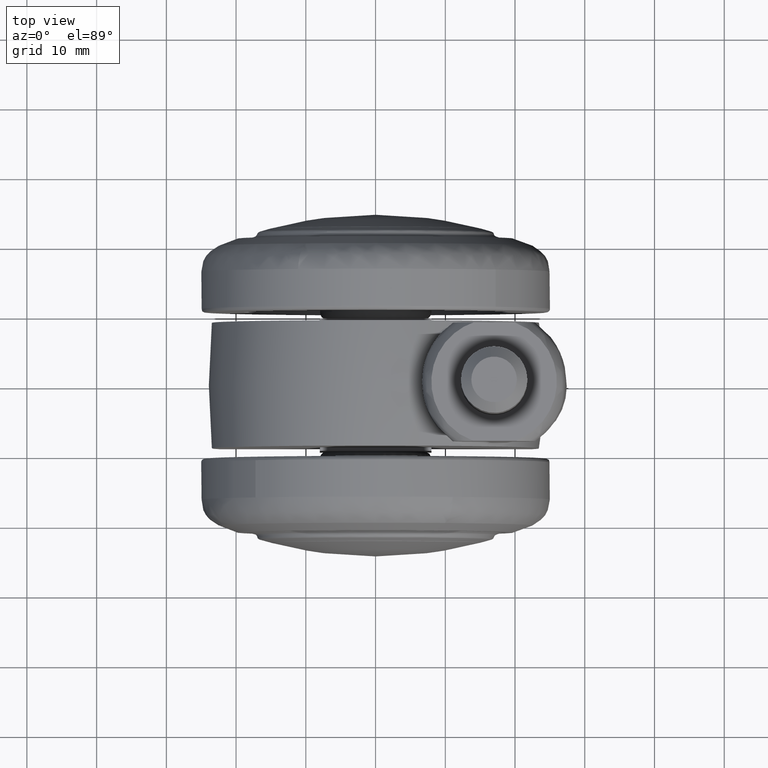
[diagram: clean part render]
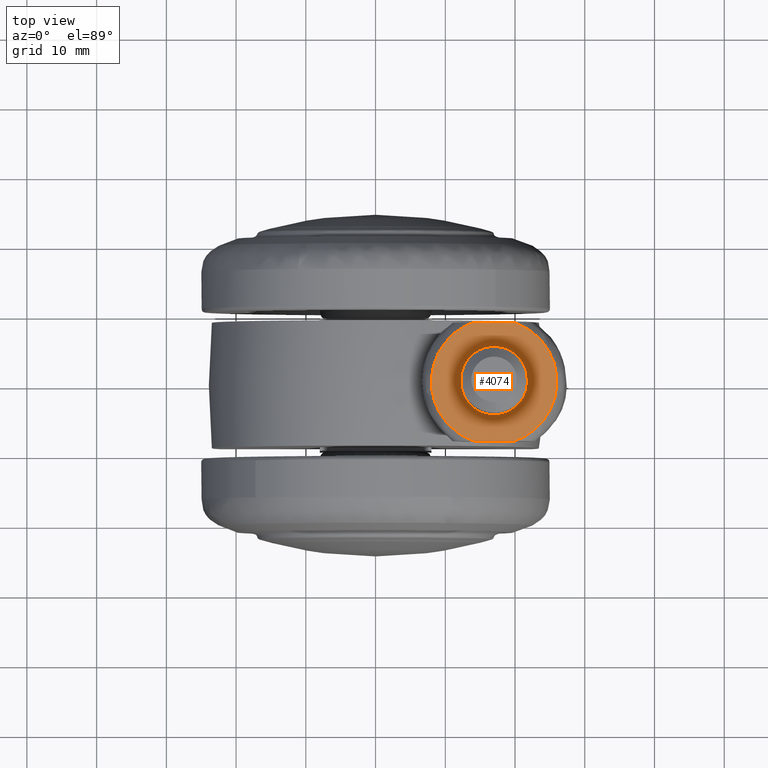
[diagram: same view with one face highlighted and labeled with its STEP entity id]
A machine part, top view. The second image highlights one B-rep face of the part: STEP entity #4074.
In plain terms, the highlighted face is a freeform B-spline surface patch.
Its self-contained STEP definition (entity closure, byte-faithful):
#2325=CARTESIAN_POINT('',(17.041560125493739,4.762318658591338,32.500000002522903));
#2326=VERTEX_POINT('',#2325);
#2332=CARTESIAN_POINT('',(12.237500000000180,-3.459513E-015,32.500000002522903));
#2333=VERTEX_POINT('',#2332);
#2334=CARTESIAN_POINT('',(17.041560125493742,4.762318658591338,32.500000002522903));
#2335=CARTESIAN_POINT('',(17.020780458466344,4.762499999999817,32.500000002522903));
#2336=CARTESIAN_POINT('',(17.0,4.762499999999817,32.500000002522903));
#2337=CARTESIAN_POINT('',(12.237500000000180,4.762499999999816,32.500000002522903));
#2338=CARTESIAN_POINT('',(12.237500000000180,-3.459513E-015,32.500000002522903));
#2346=(BOUNDED_CURVE()B_SPLINE_CURVE(2,(#2334,#2335,#2336,#2337,#2338),.UNSPECIFIED.,.F.,.U.)B_SPLINE_CURVE_WITH_KNOTS((3,2,3),(0.248460105651495,0.250000000000000,0.500000000000000),.UNSPECIFIED.)CURVE()GEOMETRIC_REPRESENTATION_ITEM()RATIONAL_B_SPLINE_CURVE((0.996414028069122,0.998195901550535,1.0,0.707106781186548,1.0))REPRESENTATION_ITEM(''));
#2347=EDGE_CURVE('',#2326,#2333,#2346,.T.);
#2349=CARTESIAN_POINT('',(21.762499999999829,-3.459513E-015,32.500000002522903));
#2350=VERTEX_POINT('',#2349);
#2351=CARTESIAN_POINT('',(12.237500000000180,-3.459513E-015,32.500000002522903));
#2352=CARTESIAN_POINT('',(12.237500000000180,-4.762499999999825,32.500000002522903));
#2353=CARTESIAN_POINT('',(17.0,-4.762499999999824,32.500000002522903));
#2354=CARTESIAN_POINT('',(21.762499999999829,-4.762499999999825,32.500000002522903));
#2355=CARTESIAN_POINT('',(21.762499999999829,-3.459513E-015,32.500000002522903));
#2363=(BOUNDED_CURVE()B_SPLINE_CURVE(2,(#2351,#2352,#2353,#2354,#2355),.UNSPECIFIED.,.F.,.U.)B_SPLINE_CURVE_WITH_KNOTS((3,2,3),(0.500000000000000,0.750000000000000,1.0),.UNSPECIFIED.)CURVE()GEOMETRIC_REPRESENTATION_ITEM()RATIONAL_B_SPLINE_CURVE((1.0,0.707106781186548,1.0,0.707106781186548,1.0))REPRESENTATION_ITEM(''));
#2364=EDGE_CURVE('',#2333,#2350,#2363,.T.);
#2366=CARTESIAN_POINT('',(21.639713954488741,1.074458314929330,32.500000002522903));
#2367=VERTEX_POINT('',#2366);
#2368=CARTESIAN_POINT('',(21.762499999999829,-3.459513E-015,32.500000002522903));
#2369=CARTESIAN_POINT('',(21.762499999999822,0.544244977845591,32.500000002522903));
#2370=CARTESIAN_POINT('',(21.639713954488737,1.074458314929330,32.500000002522896));
#2378=(BOUNDED_CURVE()B_SPLINE_CURVE(2,(#2368,#2369,#2370),.UNSPECIFIED.,.F.,.U.)B_SPLINE_CURVE_WITH_KNOTS((3,3),(0.0,0.038577028222724),.UNSPECIFIED.)CURVE()GEOMETRIC_REPRESENTATION_ITEM()RATIONAL_B_SPLINE_CURVE((1.0,0.954804200126355,0.923556557430904))REPRESENTATION_ITEM(''));
#2379=EDGE_CURVE('',#2350,#2367,#2378,.T.);
#2417=CARTESIAN_POINT('',(21.639713954488737,1.074458314929330,32.500000002522896));
#2418=CARTESIAN_POINT('',(20.793266567923848,4.729578012190576,32.500000002522910));
#2419=CARTESIAN_POINT('',(17.041560125493739,4.762318658591338,32.500000002522917));
#2427=(BOUNDED_CURVE()B_SPLINE_CURVE(2,(#2417,#2418,#2419),.UNSPECIFIED.,.F.,.U.)B_SPLINE_CURVE_WITH_KNOTS((3,3),(0.038577028222724,0.248460105651495),.UNSPECIFIED.)CURVE()GEOMETRIC_REPRESENTATION_ITEM()RATIONAL_B_SPLINE_CURVE((0.923556557430904,0.753549905455244,0.996414028069122))REPRESENTATION_ITEM(''));
#2428=EDGE_CURVE('',#2367,#2326,#2427,.T.);
#3680=CARTESIAN_POINT('',(14.041962204574659,8.500000000000000,32.500000000000000));
#3681=VERTEX_POINT('',#3680);
#3682=CARTESIAN_POINT('',(19.958037793544850,8.499999994596450,32.500000005045798));
#3683=VERTEX_POINT('',#3682);
#3684=CARTESIAN_POINT('',(14.041962204574659,8.500000000000000,32.500000000000000));
#3685=CARTESIAN_POINT('',(19.958037793544850,8.499999994596450,32.500000005045798));
#3686=QUASI_UNIFORM_CURVE('',1,(#3684,#3685),.UNSPECIFIED.,.F.,.U.);
#3687=EDGE_CURVE('',#3681,#3683,#3686,.T.);
#3829=CARTESIAN_POINT('',(14.041962204574659,-8.500000000000000,32.500000000000000));
#3830=VERTEX_POINT('',#3829);
#3903=CARTESIAN_POINT('',(19.958037795425351,-8.500000000000000,32.500000000000000));
#3904=VERTEX_POINT('',#3903);
#3965=CARTESIAN_POINT('',(14.041962204574659,-8.500000000000000,32.500000000000000));
#3966=CARTESIAN_POINT('',(19.958037795425351,-8.500000000000000,32.500000000000000));
#3967=QUASI_UNIFORM_CURVE('',1,(#3965,#3966),.UNSPECIFIED.,.F.,.U.);
#3968=EDGE_CURVE('',#3830,#3904,#3967,.T.);
#4024=CARTESIAN_POINT('',(19.958037793544850,8.499999994596452,32.500000005045798));
#4025=CARTESIAN_POINT('',(25.999999305343277,6.397370522784126,32.500000005045813));
#4026=CARTESIAN_POINT('',(25.999999305343270,0.0,32.500000005045798));
#4027=CARTESIAN_POINT('',(25.999999305343277,-6.397370522784093,32.500000005045813));
#4028=CARTESIAN_POINT('',(19.958037795425351,-8.500000000000000,32.500000000000000));
#4036=(BOUNDED_CURVE()B_SPLINE_CURVE(2,(#4024,#4025,#4026,#4027,#4028),.UNSPECIFIED.,.F.,.U.)B_SPLINE_CURVE_WITH_KNOTS((3,2,3),(0.0,0.500000000000000,1.0),.UNSPECIFIED.)CURVE()GEOMETRIC_REPRESENTATION_ITEM()RATIONAL_B_SPLINE_CURVE((1.0,0.815067755256454,1.0,0.815067755256454,1.0))REPRESENTATION_ITEM(''));
#4037=EDGE_CURVE('',#3683,#3904,#4036,.T.);
#4043=CARTESIAN_POINT('',(7.100900967911564,-9.349149967050700,32.500000002522903));
#4044=CARTESIAN_POINT('',(26.899099675818540,-9.349149967050700,32.500000002522903));
#4045=CARTESIAN_POINT('',(7.100900967911564,9.349150423026234,32.500000002522903));
#4046=CARTESIAN_POINT('',(26.899099675818540,9.349150423026234,32.500000002522903));
#4047=B_SPLINE_SURFACE_WITH_KNOTS('',1,1,((#4043,#4045),(#4044,#4046)),.UNSPECIFIED.,.F.,.F.,.U.,(2,2),(2,2),(0.0,19.798198707906980),(0.0,18.698300390076930),.UNSPECIFIED.);
#4048=ORIENTED_EDGE('',*,*,#3687,.F.);
#4049=CARTESIAN_POINT('',(14.041962204574659,-8.500000000000000,32.500000000000000));
#4050=CARTESIAN_POINT('',(8.000000694656734,-6.397370522784104,32.500000005045798));
#4051=CARTESIAN_POINT('',(8.000000694656732,0.0,32.500000005045798));
#4052=CARTESIAN_POINT('',(8.000000694656734,6.397370522784100,32.500000005045798));
#4053=CARTESIAN_POINT('',(14.041962204574659,8.500000000000000,32.500000000000000));
#4061=(BOUNDED_CURVE()B_SPLINE_CURVE(2,(#4049,#4050,#4051,#4052,#4053),.UNSPECIFIED.,.F.,.U.)B_SPLINE_CURVE_WITH_KNOTS((3,2,3),(0.0,0.500000000000000,1.0),.UNSPECIFIED.)CURVE()GEOMETRIC_REPRESENTATION_ITEM()RATIONAL_B_SPLINE_CURVE((1.0,0.815067755256454,1.0,0.815067755256454,1.0))REPRESENTATION_ITEM(''));
#4062=EDGE_CURVE('',#3830,#3681,#4061,.T.);
#4063=ORIENTED_EDGE('',*,*,#4062,.F.);
#4064=ORIENTED_EDGE('',*,*,#3968,.T.);
#4065=ORIENTED_EDGE('',*,*,#4037,.F.);
#4066=EDGE_LOOP('',(#4048,#4063,#4064,#4065));
#4067=FACE_OUTER_BOUND('',#4066,.T.);
#4068=ORIENTED_EDGE('',*,*,#2364,.F.);
#4069=ORIENTED_EDGE('',*,*,#2347,.F.);
#4070=ORIENTED_EDGE('',*,*,#2428,.F.);
#4071=ORIENTED_EDGE('',*,*,#2379,.F.);
#4072=EDGE_LOOP('',(#4068,#4069,#4070,#4071));
#4073=FACE_BOUND('',#4072,.T.);
#4074=ADVANCED_FACE('',(#4067,#4073),#4047,.T.);